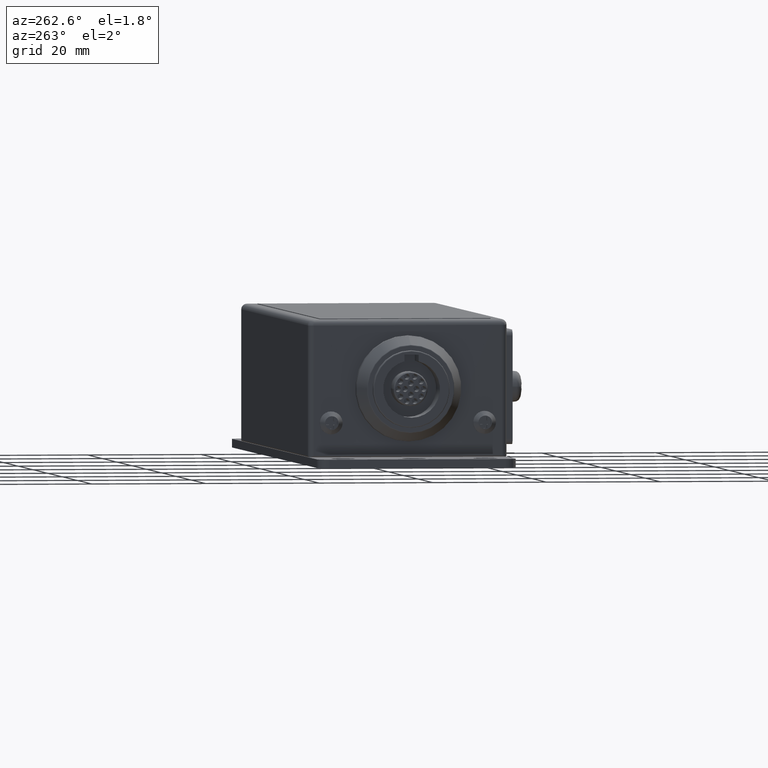
[diagram: clean part render]
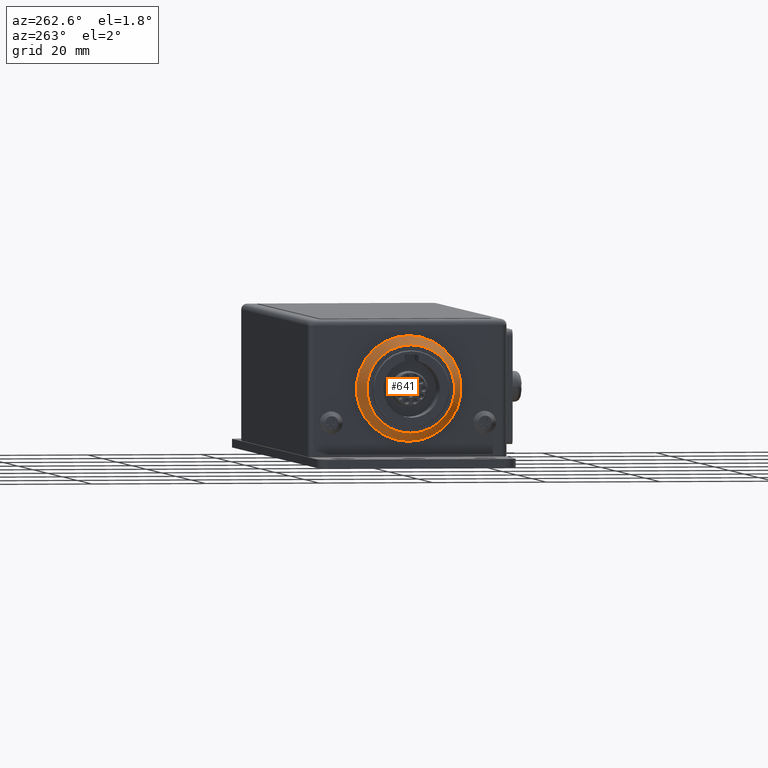
[diagram: same view with one face highlighted and labeled with its STEP entity id]
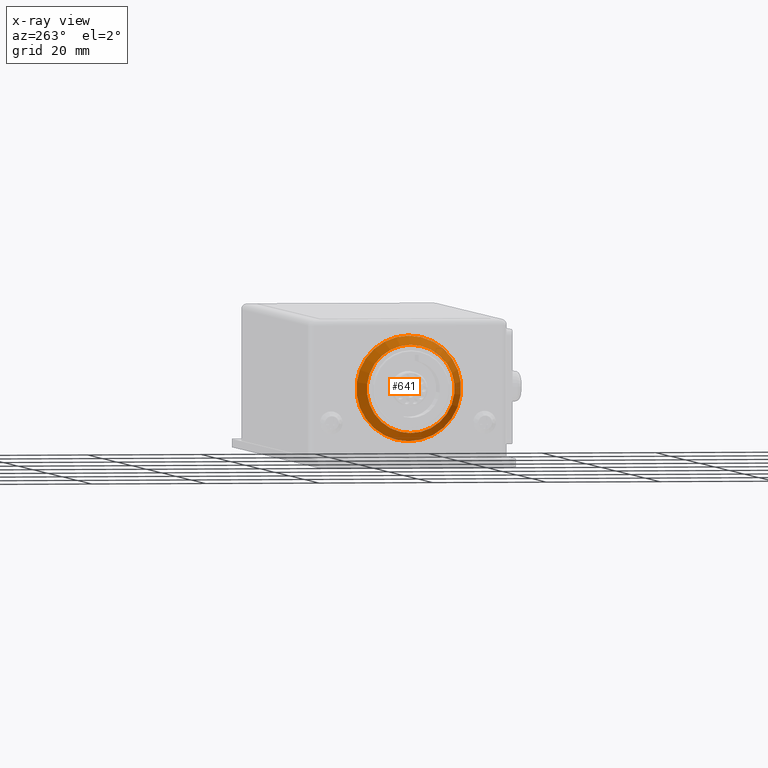
[diagram: x-ray of the same camera — body ghosted, the highlighted face saturated]
A machine part, auxiliary view. The second image highlights one B-rep face of the part: STEP entity #641.
The next image is the same camera in x-ray: the body ghosted, the highlighted face saturated — about 0% of this face is hidden behind the body in this view.
In plain terms, the highlighted conical surface has half-angle 30 deg.
Its self-contained STEP definition (entity closure, byte-faithful):
#641 = ADVANCED_FACE( '', ( #1516, #1517 ), #1518, .T. );
#1516 = FACE_BOUND( '', #2637, .T. );
#1517 = FACE_OUTER_BOUND( '', #2638, .T. );
#1518 = CONICAL_SURFACE( '', #2639, 9.25000000000009, 0.523598775598343 );
#2637 = EDGE_LOOP( '', ( #4443 ) );
#2638 = EDGE_LOOP( '', ( #4444 ) );
#2639 = AXIS2_PLACEMENT_3D( '', #4445, #4446, #4447 );
#4443 = ORIENTED_EDGE( '', *, *, #6512, .T. );
#4444 = ORIENTED_EDGE( '', *, *, #6513, .T. );
#4445 = CARTESIAN_POINT( '', ( -47.2500000000000, 1.14806845670848E-015, -12.0000000000000 ) );
#4446 = DIRECTION( '', ( 1.00000000000000, -6.12303176911189E-017, -0.000000000000000 ) );
#4447 = DIRECTION( '', ( 0.000000000000000, 0.000000000000000, -1.00000000000000 ) );
#6512 = EDGE_CURVE( '', #7908, #7908, #7909, .F. );
#6513 = EDGE_CURVE( '', #7910, #7910, #7911, .T. );
#7908 = VERTEX_POINT( '', #9720 );
#7909 = CIRCLE( '', #9721, 7.72002178664742 );
#7910 = VERTEX_POINT( '', #9722 );
#7911 = CIRCLE( '', #9723, 9.22320508075698 );
#9720 = CARTESIAN_POINT( '', ( -49.9000000000000, 1.31032879858994E-015, -4.27997821335258 ) );
#9721 = AXIS2_PLACEMENT_3D( '', #11157, #11158, #11159 );
#9722 = CARTESIAN_POINT( '', ( -47.2964101615138, 1.15091016564206E-015, -2.77679491924302 ) );
#9723 = AXIS2_PLACEMENT_3D( '', #11160, #11161, #11162 );
#11157 = CARTESIAN_POINT( '', ( -49.9000000000000, 1.31032879858994E-015, -12.0000000000000 ) );
#11158 = DIRECTION( '', ( -1.00000000000000, 6.12303176911189E-017, 0.000000000000000 ) );
#11159 = DIRECTION( '', ( 0.000000000000000, 0.000000000000000, 1.00000000000000 ) );
#11160 = CARTESIAN_POINT( '', ( -47.2964101615138, 1.15091016564206E-015, -12.0000000000000 ) );
#11161 = DIRECTION( '', ( -1.00000000000000, 6.12303176911189E-017, 0.000000000000000 ) );
#11162 = DIRECTION( '', ( 0.000000000000000, 0.000000000000000, 1.00000000000000 ) );